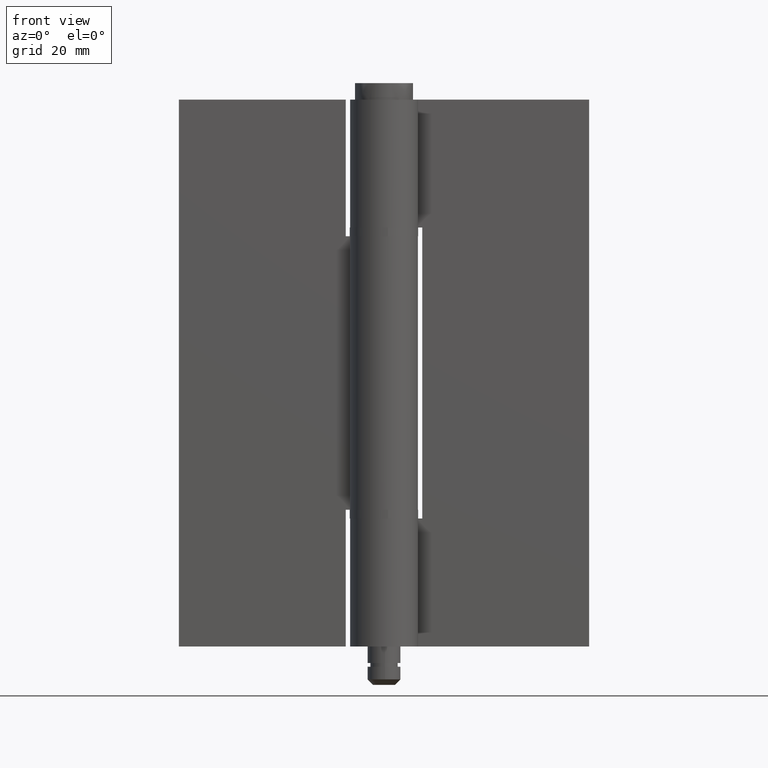
[diagram: clean part render]
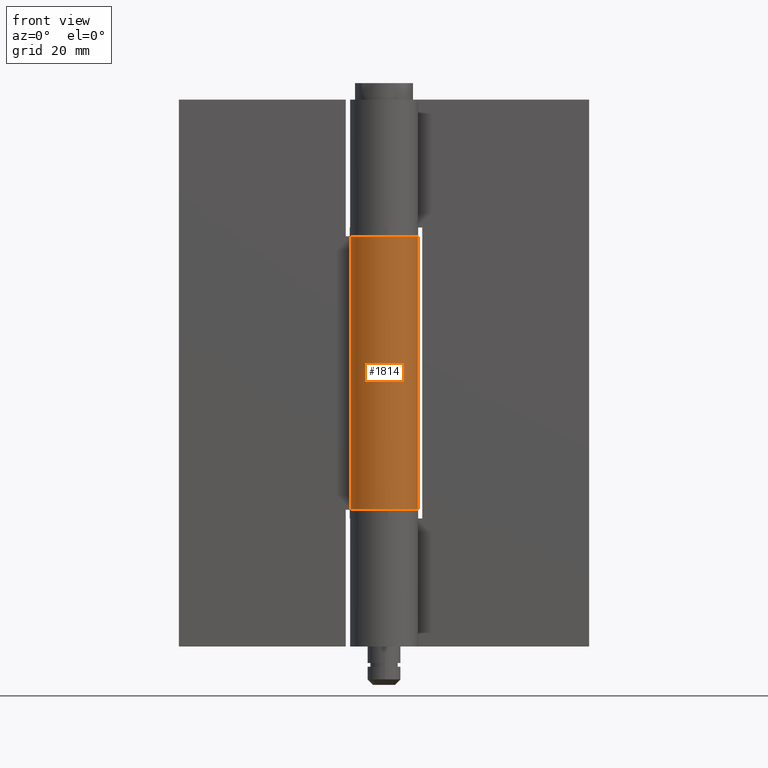
[diagram: same view with one face highlighted and labeled with its STEP entity id]
A machine part, front view. The second image highlights one B-rep face of the part: STEP entity #1814.
In plain terms, the highlighted face is a freeform B-spline surface patch.
Its self-contained STEP definition (entity closure, byte-faithful):
#1455=CARTESIAN_POINT('',(0.0,6.200001000000000,25.0));
#1456=VERTEX_POINT('',#1455);
#1462=CARTESIAN_POINT('',(-5.453210063806460,2.950000000000000,25.0));
#1463=VERTEX_POINT('',#1462);
#1464=CARTESIAN_POINT('',(-5.453210063806460,2.950000000000000,25.0));
#1465=CARTESIAN_POINT('',(-7.700628576078768,-1.204456655658359,25.000000000000007));
#1466=CARTESIAN_POINT('',(-4.291982987927463,-4.474246973846567,25.0));
#1467=CARTESIAN_POINT('',(-0.883337399776157,-7.744037292034776,25.000000000000007));
#1468=CARTESIAN_POINT('',(3.174114049620773,-5.325879708941993,25.0));
#1469=CARTESIAN_POINT('',(7.231565499017708,-2.907722125849208,25.000000000000007));
#1470=CARTESIAN_POINT('',(5.977476779354327,1.646139756648939,25.0));
#1471=CARTESIAN_POINT('',(4.723388059690952,6.200001639147080,25.000000000000007));
#1472=CARTESIAN_POINT('',(0.0,6.200001000000000,25.0));
#1480=(BOUNDED_CURVE()B_SPLINE_CURVE(2,(#1464,#1465,#1466,#1467,#1468,#1469,#1470,#1471,#1472),.UNSPECIFIED.,.F.,.U.)B_SPLINE_CURVE_WITH_KNOTS((3,2,2,2,3),(0.0,0.250000000000000,0.500000000000000,0.750000000000000,1.0),.UNSPECIFIED.)CURVE()GEOMETRIC_REPRESENTATION_ITEM()RATIONAL_B_SPLINE_CURVE((1.0,0.795457786386864,1.0,0.795457786386864,1.0,0.795457786386864,1.0,0.795457786386864,1.0))REPRESENTATION_ITEM(''));
#1481=EDGE_CURVE('',#1463,#1456,#1480,.T.);
#1554=CARTESIAN_POINT('',(0.0,6.200001000000000,74.999992999999805));
#1555=VERTEX_POINT('',#1554);
#1596=CARTESIAN_POINT('',(-5.453210063806460,2.950000000000000,74.999992999999805));
#1597=VERTEX_POINT('',#1596);
#1603=CARTESIAN_POINT('',(0.0,6.200001000000000,74.999992999999805));
#1604=CARTESIAN_POINT('',(4.723388059690953,6.200001639147075,74.999992999999819));
#1605=CARTESIAN_POINT('',(5.977476779354328,1.646139756648936,74.999992999999805));
#1606=CARTESIAN_POINT('',(7.231565499017705,-2.907722125849207,74.999992999999819));
#1607=CARTESIAN_POINT('',(3.174114049620776,-5.325879708941989,74.999992999999805));
#1608=CARTESIAN_POINT('',(-0.883337399776156,-7.744037292034773,74.999992999999819));
#1609=CARTESIAN_POINT('',(-4.291982987927463,-4.474246973846561,74.999992999999805));
#1610=CARTESIAN_POINT('',(-7.700628576078764,-1.204456655658355,74.999992999999819));
#1611=CARTESIAN_POINT('',(-5.453210063806460,2.950000000000000,74.999992999999805));
#1619=(BOUNDED_CURVE()B_SPLINE_CURVE(2,(#1603,#1604,#1605,#1606,#1607,#1608,#1609,#1610,#1611),.UNSPECIFIED.,.F.,.U.)B_SPLINE_CURVE_WITH_KNOTS((3,2,2,2,3),(0.0,0.250000000000000,0.500000000000000,0.750000000000000,1.0),.UNSPECIFIED.)CURVE()GEOMETRIC_REPRESENTATION_ITEM()RATIONAL_B_SPLINE_CURVE((1.0,0.795457786386864,1.0,0.795457786386864,1.0,0.795457786386864,1.0,0.795457786386864,1.0))REPRESENTATION_ITEM(''));
#1620=EDGE_CURVE('',#1555,#1597,#1619,.T.);
#1773=CARTESIAN_POINT('',(-5.453210063806460,2.950000000000000,74.999992999999805));
#1774=CARTESIAN_POINT('',(-5.453210063806460,2.950000000000000,25.0));
#1775=QUASI_UNIFORM_CURVE('',1,(#1773,#1774),.UNSPECIFIED.,.F.,.U.);
#1776=EDGE_CURVE('',#1597,#1463,#1775,.T.);
#1782=CARTESIAN_POINT('',(-5.342100794737458,3.146737850356365,76.249992824999822));
#1783=CARTESIAN_POINT('',(-5.342100794737458,3.146737850356365,23.718750179375011));
#1784=CARTESIAN_POINT('',(-9.204968784835399,-3.411110671258207,76.249992824999822));
#1785=CARTESIAN_POINT('',(-9.204968784835399,-3.411110671258207,23.718750179375018));
#1786=CARTESIAN_POINT('',(-2.001461549036337,-5.868062002716828,76.249992824999822));
#1787=CARTESIAN_POINT('',(-2.001461549036337,-5.868062002716828,23.718750179375011));
#1788=CARTESIAN_POINT('',(5.202045686762726,-8.325013334175450,76.249992824999822));
#1789=CARTESIAN_POINT('',(5.202045686762726,-8.325013334175450,23.718750179375018));
#1790=CARTESIAN_POINT('',(6.151562185861556,-0.773487345389816,76.249992824999822));
#1791=CARTESIAN_POINT('',(6.151562185861556,-0.773487345389816,23.718750179375011));
#1792=CARTESIAN_POINT('',(7.101078684960386,6.778038643395820,76.249992824999822));
#1793=CARTESIAN_POINT('',(7.101078684960386,6.778038643395820,23.718750179375018));
#1794=CARTESIAN_POINT('',(-0.486446393512642,6.180887469145393,76.249992824999822));
#1795=CARTESIAN_POINT('',(-0.486446393512642,6.180887469145393,23.718750179375011));
#1803=(BOUNDED_SURFACE()B_SPLINE_SURFACE(1,2,((#1782,#1784,#1786,#1788,#1790,#1792,#1794),(#1783,#1785,#1787,#1789,#1791,#1793,#1795)),.UNSPECIFIED.,.F.,.F.,.U.)B_SPLINE_SURFACE_WITH_KNOTS((2,2),(3,2,2,3),(0.0,52.531242645624822),(0.0,11.784747576008680,23.569495152017371,35.354242728026051),.UNSPECIFIED.)GEOMETRIC_REPRESENTATION_ITEM()RATIONAL_B_SPLINE_SURFACE(((1.0,0.631578351302498,1.0,0.631578351302498,1.0,0.631578351302498,1.0),(1.0,0.631578351302498,1.0,0.631578351302498,1.0,0.631578351302498,1.0)))REPRESENTATION_ITEM('')SURFACE());
#1804=ORIENTED_EDGE('',*,*,#1481,.T.);
#1805=CARTESIAN_POINT('',(0.0,6.200001000000000,74.999992999999805));
#1806=CARTESIAN_POINT('',(0.0,6.200001000000000,25.0));
#1807=QUASI_UNIFORM_CURVE('',1,(#1805,#1806),.UNSPECIFIED.,.F.,.U.);
#1808=EDGE_CURVE('',#1555,#1456,#1807,.T.);
#1809=ORIENTED_EDGE('',*,*,#1808,.F.);
#1810=ORIENTED_EDGE('',*,*,#1620,.T.);
#1811=ORIENTED_EDGE('',*,*,#1776,.T.);
#1812=EDGE_LOOP('',(#1804,#1809,#1810,#1811));
#1813=FACE_OUTER_BOUND('',#1812,.T.);
#1814=ADVANCED_FACE('',(#1813),#1803,.T.);